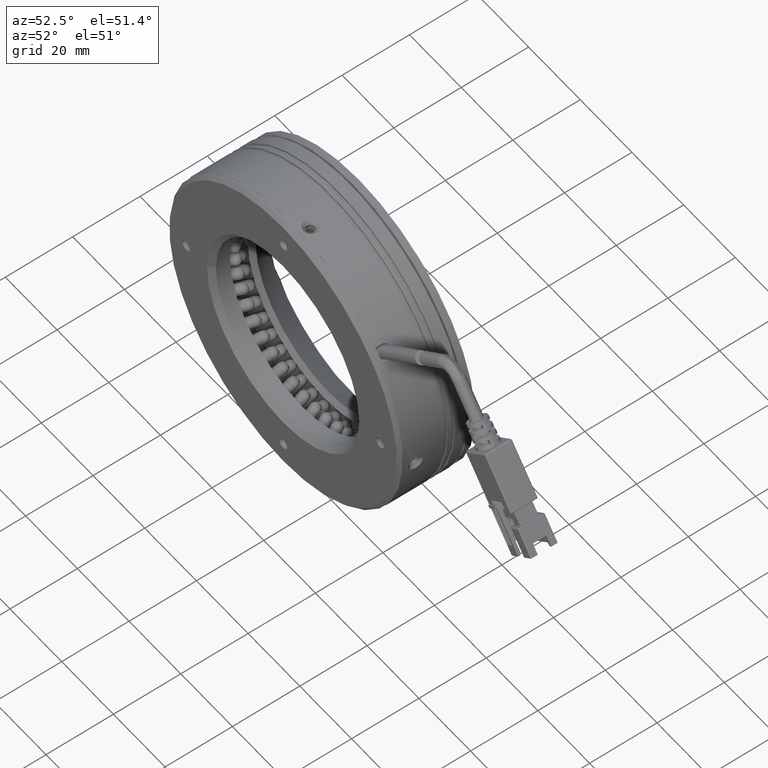
[diagram: clean part render]
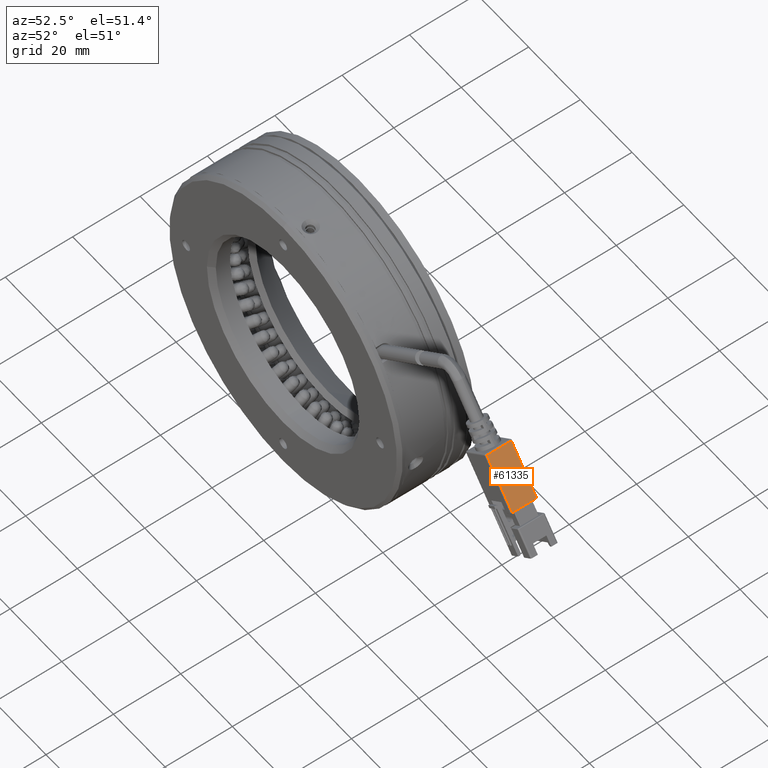
[diagram: same view with one face highlighted and labeled with its STEP entity id]
A machine part, auxiliary view. The second image highlights one B-rep face of the part: STEP entity #61335.
In plain terms, the highlighted planar face has unit normal (-0.7695, 0, -0.6387).
Its self-contained STEP definition (entity closure, byte-faithful):
#7137 = DIRECTION ( 'NONE',  ( 4.312980940812307400E-016, 1.000000000000000000, -5.196551735481171100E-016 ) ) ;
#10649 = AXIS2_PLACEMENT_3D ( 'NONE', #131792, #69497, #7137 ) ;
#11349 = VERTEX_POINT ( 'NONE', #74683 ) ;
#13315 = LINE ( 'NONE', #24414, #23156 ) ;
#14374 = FACE_OUTER_BOUND ( 'NONE', #78005, .T. ) ;
#16317 = VECTOR ( 'NONE', #35658, 1000.000000000000000 ) ;
#18131 = CARTESIAN_POINT ( 'NONE',  ( 34.57643740636911600, 23.77876601230218500, 20.58630307316852600 ) ) ;
#23156 = VECTOR ( 'NONE', #34485, 1000.000000000000000 ) ;
#24414 = CARTESIAN_POINT ( 'NONE',  ( 24.74114027404294800, 24.17876601230219400, 32.43649000497921300 ) ) ;
#25189 = CARTESIAN_POINT ( 'NONE',  ( 34.57643740636911600, 24.17876601230218400, 20.58630307316852600 ) ) ;
#33784 = ORIENTED_EDGE ( 'NONE', *, *, #126062, .F. ) ;
#34485 = DIRECTION ( 'NONE',  ( 4.312980940812307400E-016, 1.000000000000000000, -5.196551735481171100E-016 ) ) ;
#35658 = DIRECTION ( 'NONE',  ( -4.312980940812307400E-016, -1.000000000000000000, 5.196551735481171100E-016 ) ) ;
#36555 = VECTOR ( 'NONE', #67763, 1000.000000000000000 ) ;
#36817 = EDGE_CURVE ( 'NONE', #11349, #119178, #127927, .T. ) ;
#38291 = EDGE_CURVE ( 'NONE', #126241, #11349, #96140, .T. ) ;
#45076 = ORIENTED_EDGE ( 'NONE', *, *, #123819, .F. ) ;
#57060 = CARTESIAN_POINT ( 'NONE',  ( 34.70416853795776300, 16.57876601230218200, 20.43240454158657500 ) ) ;
#57362 = CARTESIAN_POINT ( 'NONE',  ( 34.70416853795777000, 23.77876601230218500, 20.43240454158657100 ) ) ;
#61335 = ADVANCED_FACE ( 'NONE', ( #14374 ), #89916, .F. ) ;
#61374 = VERTEX_POINT ( 'NONE', #90390 ) ;
#67763 = DIRECTION ( 'NONE',  ( 0.6386556579432576300, -6.753218087352324900E-016, -0.7694926579097844900 ) ) ;
#69497 = DIRECTION ( 'NONE',  ( -0.7694926579097844900, 4.930380657631323800E-032, -0.6386556579432576300 ) ) ;
#72212 = ORIENTED_EDGE ( 'NONE', *, *, #38291, .F. ) ;
#72624 = ORIENTED_EDGE ( 'NONE', *, *, #36817, .F. ) ;
#74683 = CARTESIAN_POINT ( 'NONE',  ( 34.57643740636911600, 16.57876601230218200, 20.58630307316853000 ) ) ;
#78005 = EDGE_LOOP ( 'NONE', ( #72212, #33784, #45076, #72624 ) ) ;
#84517 = CARTESIAN_POINT ( 'NONE',  ( 24.74114027404122900, 16.57876601230219300, 32.43649000498128000 ) ) ;
#89916 = PLANE ( 'NONE',  #10649 ) ;
#90390 = CARTESIAN_POINT ( 'NONE',  ( 24.74114027404294800, 23.77876601230219200, 32.43649000497921300 ) ) ;
#96140 = LINE ( 'NONE', #25189, #16317 ) ;
#96992 = VECTOR ( 'NONE', #129735, 1000.000000000000000 ) ;
#119178 = VERTEX_POINT ( 'NONE', #84517 ) ;
#119598 = LINE ( 'NONE', #57362, #36555 ) ;
#123819 = EDGE_CURVE ( 'NONE', #119178, #61374, #13315, .T. ) ;
#126062 = EDGE_CURVE ( 'NONE', #61374, #126241, #119598, .T. ) ;
#126241 = VERTEX_POINT ( 'NONE', #18131 ) ;
#127927 = LINE ( 'NONE', #57060, #96992 ) ;
#129735 = DIRECTION ( 'NONE',  ( -0.6386556579432576300, 6.753218087352324900E-016, 0.7694926579097844900 ) ) ;
#131792 = CARTESIAN_POINT ( 'NONE',  ( 34.70416853795777000, 24.17876601230218400, 20.43240454158657100 ) ) ;